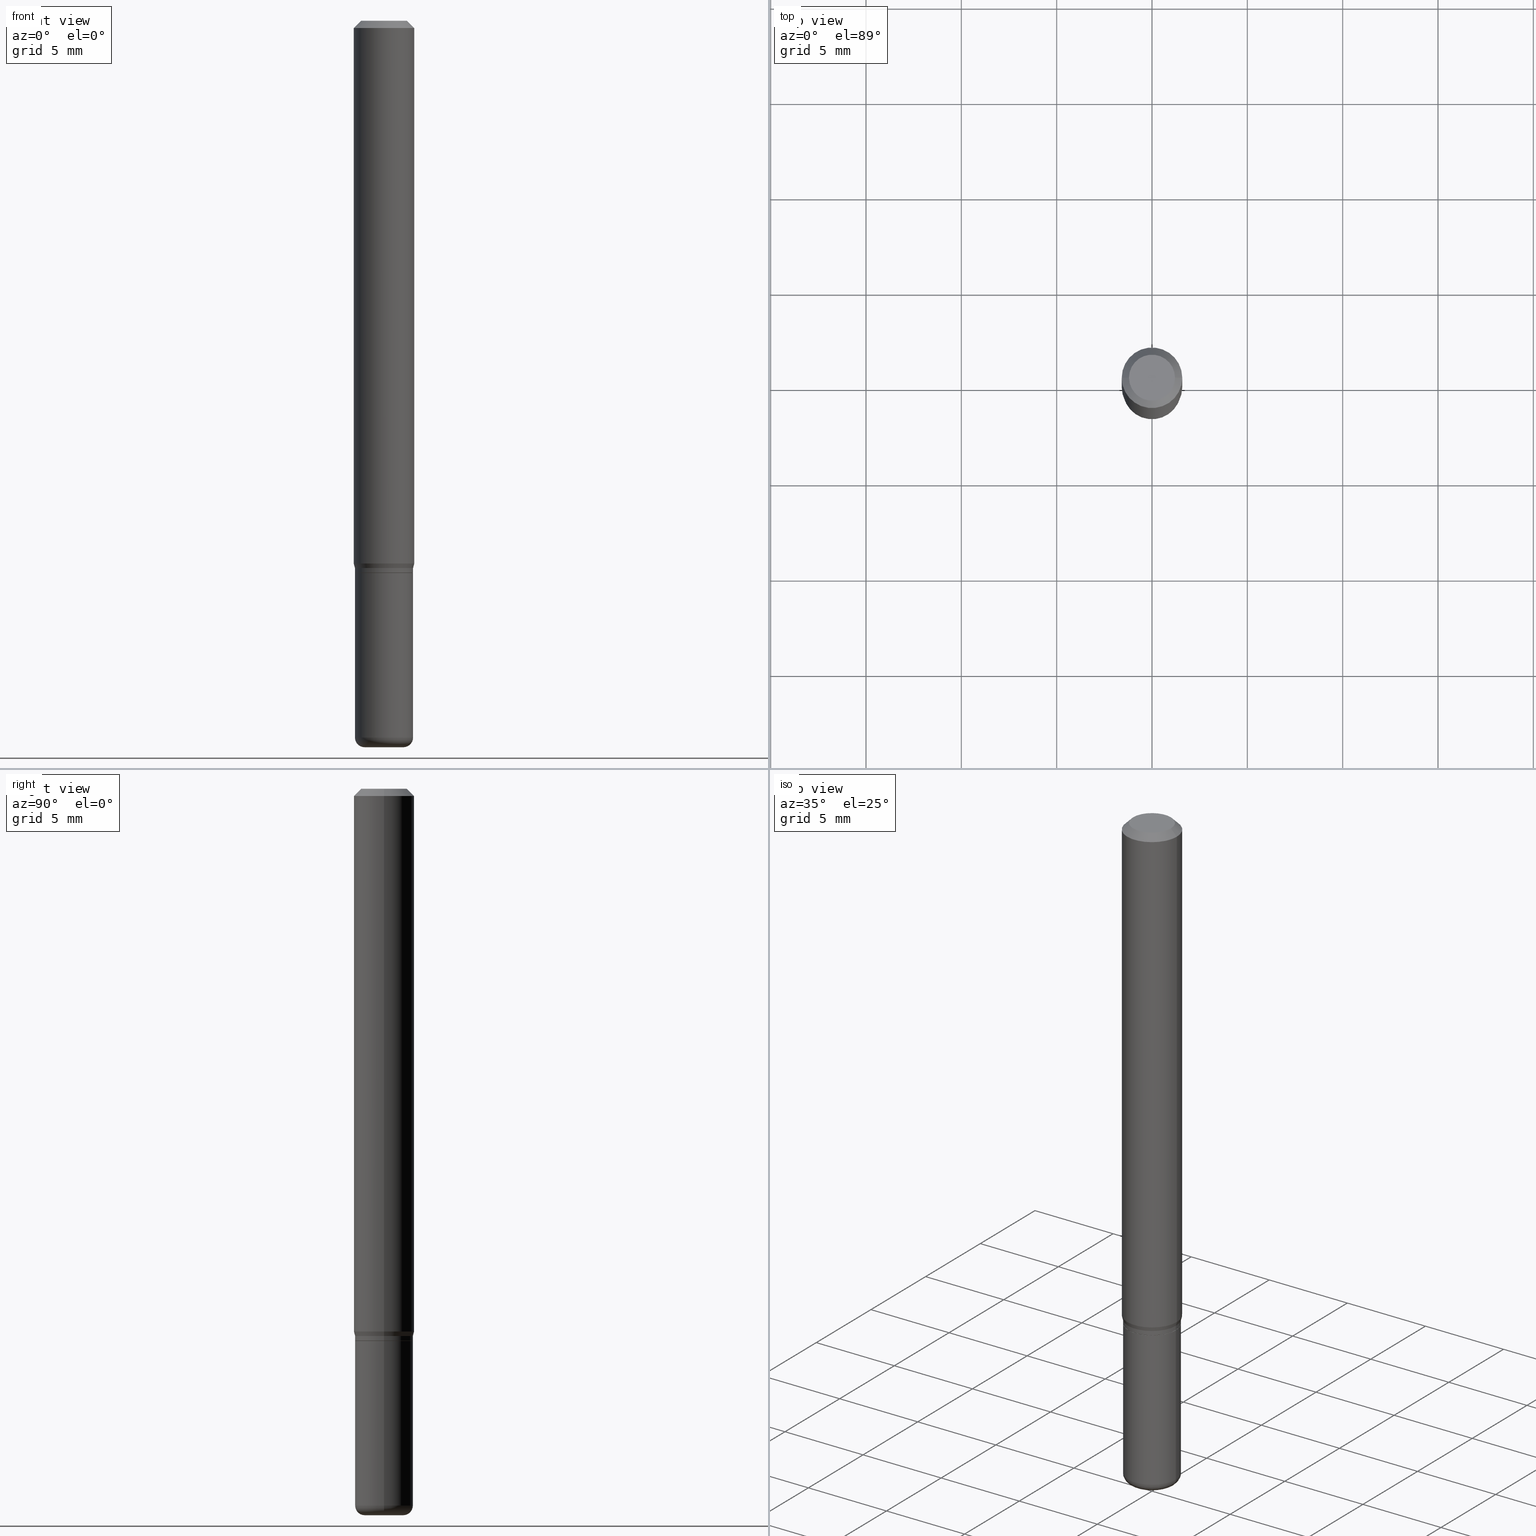
[diagram: canonical four-view strip — front | top / right | iso, engineering-drawing reading convention]
A machine part, canonical four-view strip (front | top / right | iso — engineering-drawing reading convention). The complete STEP part file that produces these views, byte-faithful:
ISO-10303-21;
HEADER;
FILE_DESCRIPTION (( 'STEP AP203' ),
    '1' );
FILE_NAME ('08638.STEP',
    '2024-02-29T20:06:43',
    ( '' ),
    ( '' ),
    'SwSTEP 2.0',
    'SolidWorks 2023',
    '' );
FILE_SCHEMA (( 'CONFIG_CONTROL_DESIGN' ));
ENDSEC;

DATA;
#1 = CARTESIAN_POINT ( 'NONE',  ( 0.05950000000000001815, -4.395775005603519536E-15, -1.140000000000000124 ) ) ;
#2 = EDGE_CURVE ( 'NONE', #74, #386, #167, .T. ) ;
#3 = ORIENTED_EDGE ( 'NONE', *, *, #316, .T. ) ;
#4 = CALENDAR_DATE ( 2024, 29, 2 ) ;
#5 = ORIENTED_EDGE ( 'NONE', *, *, #423, .F. ) ;
#6 = CIRCLE ( 'NONE', #293, 0.06250000000000000000 ) ;
#7 = AXIS2_PLACEMENT_3D ( 'NONE', #515, #438, #269 ) ;
#8 = APPLICATION_PROTOCOL_DEFINITION ( 'international standard', 'config_control_design', 1994, #135 ) ;
#9 = ORIENTED_EDGE ( 'NONE', *, *, #482, .T. ) ;
#10 = MECHANICAL_CONTEXT ( 'NONE', #135, 'mechanical' ) ;
#11 = DIRECTION ( 'NONE',  ( 1.000000000000000000, -6.982962677686266711E-15, 4.876176775795935793E-29 ) ) ;
#12 = ORIENTED_EDGE ( 'NONE', *, *, #29, .F. ) ;
#13 = AXIS2_PLACEMENT_3D ( 'NONE', #340, #292, #218 ) ;
#14 = AXIS2_PLACEMENT_3D ( 'NONE', #307, #200, #481 ) ;
#15 =( NAMED_UNIT ( * ) SI_UNIT ( $, .STERADIAN. ) SOLID_ANGLE_UNIT ( ) );
#16 = CARTESIAN_POINT ( 'NONE',  ( 0.06250000000000000000, -4.811533449433669144E-16, -0.01499999999999970281 ) ) ;
#17 = CARTESIAN_POINT ( 'NONE',  ( 0.04000000000000000083, -5.446710888595305705E-15, -1.479999999999999982 ) ) ;
#18 = EDGE_CURVE ( 'NONE', #112, #510, #447, .T. ) ;
#19 = CARTESIAN_POINT ( 'NONE',  ( -0.04000000000000000777, -4.847035826996236908E-15, -1.500000000000000222 ) ) ;
#20 = APPROVAL_DATE_TIME ( #342, #400 ) ;
#21 = LOCAL_TIME ( 15, 6, 43.00000000000000000, #339 ) ;
#22 = DIRECTION ( 'NONE',  ( -2.445468806185136597E-29, 3.491481338843145583E-15, 1.000000000000000000 ) ) ;
#23 = EDGE_CURVE ( 'NONE', #240, #75, #368, .T. ) ;
#24 = COORDINATED_UNIVERSAL_TIME_OFFSET ( 5, 0, .BEHIND. ) ;
#25 = DIRECTION ( 'NONE',  ( -2.445468806185136597E-29, 3.491481338843145583E-15, 1.000000000000000000 ) ) ;
#26 = DIRECTION ( 'NONE',  ( 1.000000000000000000, -6.982962677686268288E-15, 0.000000000000000000 ) ) ;
#27 = TOROIDAL_SURFACE ( 'NONE', #60, 0.04000000000000000083, 0.02000000000000003511 ) ;
#28 = CARTESIAN_POINT ( 'NONE',  ( 2.763379750989204444E-29, -3.945373912892755049E-15, -1.130000000000000115 ) ) ;
#29 = EDGE_CURVE ( 'NONE', #80, #112, #170, .T. ) ;
#30 = ORIENTED_EDGE ( 'NONE', *, *, #166, .F. ) ;
#31 = DIRECTION ( 'NONE',  ( 1.000000000000000000, -6.982962677686268288E-15, 0.000000000000000000 ) ) ;
#32 = CC_DESIGN_PERSON_AND_ORGANIZATION_ASSIGNMENT ( #101, #424, ( #441 ) ) ;
#33 = ORIENTED_EDGE ( 'NONE', *, *, #242, .F. ) ;
#34 = VERTEX_POINT ( 'NONE', #490 ) ;
#35 = PLANE ( 'NONE',  #257 ) ;
#36 = ORIENTED_EDGE ( 'NONE', *, *, #42, .F. ) ;
#37 = ORIENTED_EDGE ( 'NONE', *, *, #453, .F. ) ;
#38 = EDGE_CURVE ( 'NONE', #308, #510, #95, .T. ) ;
#39 = CARTESIAN_POINT ( 'NONE',  ( -0.06000000000000001860, 4.263256414560602437E-16, -2.951361054152944114E-30 ) ) ;
#40 = AXIS2_PLACEMENT_3D ( 'NONE', #128, #248, #11 ) ;
#41 = AXIS2_PLACEMENT_3D ( 'NONE', #407, #252, #127 ) ;
#42 = EDGE_CURVE ( 'NONE', #54, #74, #197, .T. ) ;
#43 = DIRECTION ( 'NONE',  ( 2.445468806185136597E-29, -3.491481338843145583E-15, -1.000000000000000000 ) ) ;
#44 = EDGE_LOOP ( 'NONE', ( #427, #493, #348, #321 ) ) ;
#45 = DIRECTION ( 'NONE',  ( 1.000000000000000000, -6.982962677686264344E-15, 0.000000000000000000 ) ) ;
#46 = EDGE_CURVE ( 'NONE', #187, #190, #301, .T. ) ;
#47 = EDGE_LOOP ( 'NONE', ( #371, #66, #118, #313 ) ) ;
#48 = CARTESIAN_POINT ( 'NONE',  ( -0.05999999999999999084, -3.493878505051891822E-15, -1.130000000000000115 ) ) ;
#49 = ADVANCED_FACE ( 'NONE', ( #173 ), #495, .T. ) ;
#50 = AXIS2_PLACEMENT_3D ( 'NONE', #193, #474, #434 ) ;
#51 = AXIS2_PLACEMENT_3D ( 'NONE', #123, #86, #246 ) ;
#52 = CARTESIAN_POINT ( 'NONE',  ( -6.680649051745406845E-45, 9.538196290434862081E-31, 2.731847993664263218E-16 ) ) ;
#53 = CARTESIAN_POINT ( 'NONE',  ( -0.06250000000000000000, 3.840629472727455270E-16, -0.01499999999999970281 ) ) ;
#54 = VERTEX_POINT ( 'NONE', #131 ) ;
#55 = DIRECTION ( 'NONE',  ( -6.982962677686266711E-15, -1.000000000000000000, 3.491481338843145583E-15 ) ) ;
#56 = PERSON_AND_ORGANIZATION ( #175, #179 ) ;
#57 = CARTESIAN_POINT ( 'NONE',  ( 3.668203209277704895E-29, -5.237222008264718177E-15, -1.500000000000000222 ) ) ;
#58 = CYLINDRICAL_SURFACE ( 'NONE', #13, 0.06000000000000001166 ) ;
#59 = DIRECTION ( 'NONE',  ( -2.445468806185136597E-29, 3.491481338843145583E-15, 1.000000000000000000 ) ) ;
#60 = AXIS2_PLACEMENT_3D ( 'NONE', #416, #25, #148 ) ;
#61 = DIRECTION ( 'NONE',  ( -1.000000000000000000, 6.982962677686266711E-15, 0.000000000000000000 ) ) ;
#62 = CC_DESIGN_PERSON_AND_ORGANIZATION_ASSIGNMENT ( #320, #485, ( #498 ) ) ;
#63 = CARTESIAN_POINT ( 'NONE',  ( -0.06000000000000001860, -3.552217344155705099E-15, -1.139500000000000179 ) ) ;
#64 = ORIENTED_EDGE ( 'NONE', *, *, #338, .F. ) ;
#65 = DIRECTION ( 'NONE',  ( 1.000000000000000000, -6.982962677686262766E-15, 0.000000000000000000 ) ) ;
#66 = ORIENTED_EDGE ( 'NONE', *, *, #488, .T. ) ;
#67 = EDGE_CURVE ( 'NONE', #54, #187, #491, .T. ) ;
#68 = CIRCLE ( 'NONE', #238, 0.04000000000000000777 ) ;
#69 = CARTESIAN_POINT ( 'NONE',  ( 3.316907271900976589E-16, 0.04750000000000000749, -2.925296391183627249E-17 ) ) ;
#70 = VECTOR ( 'NONE', #444, 39.37007874015748143 ) ;
#71 = ORIENTED_EDGE ( 'NONE', *, *, #126, .F. ) ;
#72 = PRODUCT_DEFINITION_SHAPE ( 'NONE', 'NONE',  #498 ) ;
#73 = DIRECTION ( 'NONE',  ( 1.000000000000000000, -6.982962677686269077E-15, 0.000000000000000000 ) ) ;
#74 = VERTEX_POINT ( 'NONE', #487 ) ;
#75 = VERTEX_POINT ( 'NONE', #93 ) ;
#76 = CARTESIAN_POINT ( 'NONE',  ( 0.04750000000000000749, -4.035134999187568762E-16, 2.731847993664288856E-16 ) ) ;
#77 = EDGE_CURVE ( 'NONE', #201, #381, #263, .T. ) ;
#78 = CARTESIAN_POINT ( 'NONE',  ( 4.189777606612038494E-16, 0.05999999999999602179, -1.140000000000000346 ) ) ;
#79 = CONICAL_SURFACE ( 'NONE', #362, 0.05950000000000001815, 0.7853981633975507526 ) ;
#80 = VERTEX_POINT ( 'NONE', #366 ) ;
#81 = AXIS2_PLACEMENT_3D ( 'NONE', #244, #456, #133 ) ;
#82 = CC_DESIGN_PERSON_AND_ORGANIZATION_ASSIGNMENT ( #260, #103, ( #247 ) ) ;
#83 = VERTEX_POINT ( 'NONE', #48 ) ;
#84 = DIRECTION ( 'NONE',  ( 2.438088387897960049E-29, -3.491481338843145188E-15, -1.000000000000000000 ) ) ;
#85 = EDGE_LOOP ( 'NONE', ( #457, #435, #518, #478 ) ) ;
#86 = DIRECTION ( 'NONE',  ( -2.445468806185136597E-29, 3.491481338843145583E-15, 1.000000000000000000 ) ) ;
#87 = EDGE_LOOP ( 'NONE', ( #283, #330 ) ) ;
#88 = ADVANCED_FACE ( 'NONE', ( #206 ), #245, .T. ) ;
#89 = DIRECTION ( 'NONE',  ( -2.445468806185136597E-29, 3.491481338843145583E-15, 1.000000000000000000 ) ) ;
#90 = VECTOR ( 'NONE', #297, 39.37007874015748143 ) ;
#91 = CC_DESIGN_APPROVAL ( #400, ( #247 ) ) ;
#92 = PLANE ( 'NONE',  #41 ) ;
#93 = CARTESIAN_POINT ( 'NONE',  ( -0.06250000000000000000, -1.538495874449836183E-15, -0.01499999999999970281 ) ) ;
#94 = DIRECTION ( 'NONE',  ( -2.445468806185136597E-29, 3.491481338843145583E-15, 1.000000000000000000 ) ) ;
#95 = LINE ( 'NONE', #16, #334 ) ;
#96 = CC_DESIGN_PERSON_AND_ORGANIZATION_ASSIGNMENT ( #299, #296, ( #247 ) ) ;
#97 =( CONVERSION_BASED_UNIT ( 'INCH', #213 ) LENGTH_UNIT ( ) NAMED_UNIT ( #332 ) );
#98 = CARTESIAN_POINT ( 'NONE',  ( 0.000000000000000000, 0.000000000000000000, 0.000000000000000000 ) ) ;
#99 = CIRCLE ( 'NONE', #116, 0.05950000000000001815 ) ;
#100 = CIRCLE ( 'NONE', #172, 0.05999999999999999778 ) ;
#101 = PERSON_AND_ORGANIZATION ( #175, #179 ) ;
#102 = DIRECTION ( 'NONE',  ( -2.445468806185136597E-29, 3.491481338843145583E-15, 1.000000000000000000 ) ) ;
#103 = PERSON_AND_ORGANIZATION_ROLE ( 'creator' ) ;
#104 = CARTESIAN_POINT ( 'NONE',  ( 2.787834439051055989E-29, -3.980288726281186698E-15, -1.140000000000000124 ) ) ;
#105 = CALENDAR_DATE ( 2024, 29, 2 ) ;
#106 = FACE_OUTER_BOUND ( 'NONE', #47, .T. ) ;
#107 = CLOSED_SHELL ( 'NONE', ( #412, #149, #276, #49, #443, #266, #88, #163, #322, #222, #365, #185 ) ) ;
#108 = DIRECTION ( 'NONE',  ( 1.000000000000000000, -6.982962677686265922E-15, 4.876176775795935793E-29 ) ) ;
#109 = DATE_TIME_ROLE ( 'creation_date' ) ;
#110 = DIRECTION ( 'NONE',  ( -2.445468806185136877E-29, 3.491481338843145188E-15, 1.000000000000000000 ) ) ;
#111 = EDGE_CURVE ( 'NONE', #112, #34, #328, .T. ) ;
#112 = VERTEX_POINT ( 'NONE', #226 ) ;
#113 = EDGE_CURVE ( 'NONE', #187, #54, #68, .T. ) ;
#114 = DIRECTION ( 'NONE',  ( 1.000000000000000000, -6.982962677686273810E-15, 0.000000000000000000 ) ) ;
#115 = ORIENTED_EDGE ( 'NONE', *, *, #126, .T. ) ;
#116 = AXIS2_PLACEMENT_3D ( 'NONE', #220, #505, #143 ) ;
#117 = DIRECTION ( 'NONE',  ( -2.445468806185136597E-29, 3.491481338843145583E-15, 1.000000000000000000 ) ) ;
#118 = ORIENTED_EDGE ( 'NONE', *, *, #509, .T. ) ;
#119 = DIRECTION ( 'NONE',  ( -2.445468806185136877E-29, 3.491481338843145188E-15, 1.000000000000000000 ) ) ;
#120 = ORIENTED_EDGE ( 'NONE', *, *, #111, .F. ) ;
#121 = DIRECTION ( 'NONE',  ( -2.445468806185136597E-29, 3.491481338843145583E-15, 1.000000000000000000 ) ) ;
#122 = ORIENTED_EDGE ( 'NONE', *, *, #233, .T. ) ;
#123 = CARTESIAN_POINT ( 'NONE',  ( 3.668203209277632395E-31, -5.237222008264614861E-17, -0.01499999999999970281 ) ) ;
#124 = CIRCLE ( 'NONE', #413, 0.06000000000000003247 ) ;
#125 = FACE_OUTER_BOUND ( 'NONE', #87, .T. ) ;
#126 = EDGE_CURVE ( 'NONE', #381, #201, #99, .T. ) ;
#127 = DIRECTION ( 'NONE',  ( 1.000000000000000000, -6.982962677686265922E-15, 4.876176775795935793E-29 ) ) ;
#128 = CARTESIAN_POINT ( 'NONE',  ( 0.000000000000000000, 0.000000000000000000, 0.000000000000000000 ) ) ;
#129 = CARTESIAN_POINT ( 'NONE',  ( 0.06250000000000000000, -4.888073874380378612E-16, -0.01499999999999970281 ) ) ;
#130 = EDGE_CURVE ( 'NONE', #83, #80, #392, .T. ) ;
#131 = CARTESIAN_POINT ( 'NONE',  ( 0.04000000000000000777, -5.516540515372169003E-15, -1.500000000000000222 ) ) ;
#132 = AXIS2_PLACEMENT_3D ( 'NONE', #281, #136, #454 ) ;
#133 = DIRECTION ( 'NONE',  ( 1.000000000000000000, -6.982962677686265922E-15, 0.000000000000000000 ) ) ;
#134 = DIRECTION ( 'NONE',  ( 1.000000000000000000, -6.982962677686272233E-15, 0.000000000000000000 ) ) ;
#135 = APPLICATION_CONTEXT ( 'configuration controlled 3d designs of mechanical parts and assemblies' ) ;
#136 = DIRECTION ( 'NONE',  ( -2.445468806185136597E-29, 3.491481338843145583E-15, 1.000000000000000000 ) ) ;
#137 = ORIENTED_EDGE ( 'NONE', *, *, #473, .T. ) ;
#138 = FACE_OUTER_BOUND ( 'NONE', #379, .T. ) ;
#139 = EDGE_CURVE ( 'NONE', #196, #83, #507, .T. ) ;
#140 = CIRCLE ( 'NONE', #155, 0.06250000000000000000 ) ;
#141 = CARTESIAN_POINT ( 'NONE',  ( 2.787834439051055989E-29, -3.980288726281186698E-15, -1.140000000000000124 ) ) ;
#142 = DATE_AND_TIME ( #373, #484 ) ;
#143 = DIRECTION ( 'NONE',  ( 1.000000000000000000, -6.982962677686273810E-15, 0.000000000000000000 ) ) ;
#144 = ORIENTED_EDGE ( 'NONE', *, *, #242, .T. ) ;
#145 = FACE_OUTER_BOUND ( 'NONE', #229, .T. ) ;
#146 = AXIS2_PLACEMENT_3D ( 'NONE', #17, #55, #134 ) ;
#147 = AXIS2_PLACEMENT_3D ( 'NONE', #486, #451, #255 ) ;
#148 = DIRECTION ( 'NONE',  ( 1.000000000000000000, -6.982962677686264344E-15, 4.883557194083111780E-29 ) ) ;
#149 = ADVANCED_FACE ( 'NONE', ( #145 ), #79, .T. ) ;
#150 = FACE_OUTER_BOUND ( 'NONE', #503, .T. ) ;
#151 = DIRECTION ( 'NONE',  ( -1.000000000000000000, 6.982962677686265922E-15, -4.876176775795935793E-29 ) ) ;
#152 = VERTEX_POINT ( 'NONE', #376 ) ;
#153 = ORIENTED_EDGE ( 'NONE', *, *, #2, .T. ) ;
#154 = VECTOR ( 'NONE', #110, 39.37007874015748143 ) ;
#155 = AXIS2_PLACEMENT_3D ( 'NONE', #390, #517, #158 ) ;
#156 = DIRECTION ( 'NONE',  ( -2.445468806185136597E-29, 3.491481338843145583E-15, 1.000000000000000000 ) ) ;
#157 = ORIENTED_EDGE ( 'NONE', *, *, #77, .T. ) ;
#158 = DIRECTION ( 'NONE',  ( 1.000000000000000000, -6.982962677686266711E-15, 0.000000000000000000 ) ) ;
#159 = DIRECTION ( 'NONE',  ( -1.000000000000000000, 6.982962677686265922E-15, -4.876176775795935793E-29 ) ) ;
#160 = APPROVAL_DATE_TIME ( #285, #195 ) ;
#161 = AXIS2_PLACEMENT_3D ( 'NONE', #57, #210, #372 ) ;
#162 = CIRCLE ( 'NONE', #7, 0.04750000000000000749 ) ;
#163 = ADVANCED_FACE ( 'NONE', ( #189 ), #461, .T. ) ;
#164 = ORIENTED_EDGE ( 'NONE', *, *, #211, .T. ) ;
#165 = DIRECTION ( 'NONE',  ( -2.445468806185136597E-29, 3.491481338843145583E-15, 1.000000000000000000 ) ) ;
#166 = EDGE_CURVE ( 'NONE', #34, #75, #176, .T. ) ;
#167 = LINE ( 'NONE', #256, #309 ) ;
#168 = ADVANCED_FACE ( 'NONE', ( #345 ), #27, .T. ) ;
#169 = PERSON_AND_ORGANIZATION ( #175, #179 ) ;
#170 = LINE ( 'NONE', #331, #402 ) ;
#171 = VECTOR ( 'NONE', #217, 39.37007874015748143 ) ;
#172 = AXIS2_PLACEMENT_3D ( 'NONE', #385, #388, #31 ) ;
#173 = FACE_OUTER_BOUND ( 'NONE', #512, .T. ) ;
#174 = CARTESIAN_POINT ( 'NONE',  ( 2.787834439051055989E-29, -3.980288726281186698E-15, -1.140000000000000124 ) ) ;
#175 = PERSON ( 'UNSPECIFIED', 'UNSPECIFIED', 'UNSPECIFIED', ('UNSPECIFIED'), ('UNSPECIFIED'), ('UNSPECIFIED') ) ;
#176 = LINE ( 'NONE', #378, #154 ) ;
#177 = VECTOR ( 'NONE', #119, 39.37007874015748143 ) ;
#178 = ORIENTED_EDGE ( 'NONE', *, *, #208, .F. ) ;
#179 = ORGANIZATION ( 'UNSPECIFIED', 'UNSPECIFIED', '' ) ;
#180 = MANIFOLD_SOLID_BREP ( 'Body-Move/Copy2[2]', #107 ) ;
#181 = APPROVAL_STATUS ( 'not_yet_approved' ) ;
#182 = FACE_OUTER_BOUND ( 'NONE', #44, .T. ) ;
#183 = DIRECTION ( 'NONE',  ( -2.445468806185136597E-29, 3.491481338843145583E-15, 1.000000000000000000 ) ) ;
#184 = CALENDAR_DATE ( 2024, 29, 2 ) ;
#185 = ADVANCED_FACE ( 'NONE', ( #106 ), #58, .T. ) ;
#186 = DIRECTION ( 'NONE',  ( -2.445468806185136597E-29, 3.491481338843145583E-15, 1.000000000000000000 ) ) ;
#187 = VERTEX_POINT ( 'NONE', #19 ) ;
#188 = VECTOR ( 'NONE', #265, 39.37007874015748143 ) ;
#189 = FACE_OUTER_BOUND ( 'NONE', #401, .T. ) ;
#190 = VERTEX_POINT ( 'NONE', #380 ) ;
#191 = FACE_OUTER_BOUND ( 'NONE', #333, .T. ) ;
#192 = ORIENTED_EDGE ( 'NONE', *, *, #311, .F. ) ;
#193 = CARTESIAN_POINT ( 'NONE',  ( 2.763379750989204444E-29, -3.945373912892755049E-15, -1.130000000000000115 ) ) ;
#194 = ORIENTED_EDGE ( 'NONE', *, *, #77, .F. ) ;
#195 = APPROVAL ( #327, 'UNSPECIFIED' ) ;
#196 = VERTEX_POINT ( 'NONE', #63 ) ;
#197 = CIRCLE ( 'NONE', #146, 0.02000000000000003511 ) ;
#198 = LINE ( 'NONE', #1, #403 ) ;
#199 = ORIENTED_EDGE ( 'NONE', *, *, #208, .T. ) ;
#200 = DIRECTION ( 'NONE',  ( -2.445468806185136597E-29, 3.491481338843145583E-15, 1.000000000000000000 ) ) ;
#201 = VERTEX_POINT ( 'NONE', #304 ) ;
#202 = DIRECTION ( 'NONE',  ( 1.000000000000000000, -6.982962677686266711E-15, 4.876176775795935793E-29 ) ) ;
#203 = ORIENTED_EDGE ( 'NONE', *, *, #113, .T. ) ;
#204 = LINE ( 'NONE', #492, #329 ) ;
#205 = AXIS2_PLACEMENT_3D ( 'NONE', #464, #232, #73 ) ;
#206 = FACE_OUTER_BOUND ( 'NONE', #411, .T. ) ;
#207 = AXIS2_PLACEMENT_3D ( 'NONE', #78, #239, #151 ) ;
#208 = EDGE_CURVE ( 'NONE', #190, #74, #124, .T. ) ;
#209 = CARTESIAN_POINT ( 'NONE',  ( 0.06000000000000001166, -4.189777606611760914E-16, 2.925706065477562106E-30 ) ) ;
#210 = DIRECTION ( 'NONE',  ( -2.445468806185136597E-29, 3.491481338843145583E-15, 1.000000000000000000 ) ) ;
#211 = EDGE_CURVE ( 'NONE', #381, #196, #335, .T. ) ;
#212 = CARTESIAN_POINT ( 'NONE',  ( 0.06250000000000000000, -4.364351673553916694E-16, 3.047610484872459871E-30 ) ) ;
#213 = LENGTH_MEASURE_WITH_UNIT ( LENGTH_MEASURE( 0.02539999999999999897 ), #367 );
#214 = EDGE_LOOP ( 'NONE', ( #224, #137, #120, #12 ) ) ;
#215 = AXIS2_PLACEMENT_3D ( 'NONE', #174, #89, #445 ) ;
#216 = CC_DESIGN_APPROVAL ( #506, ( #441 ) ) ;
#217 = DIRECTION ( 'NONE',  ( -2.445468806185136877E-29, 3.491481338843145188E-15, 1.000000000000000000 ) ) ;
#218 = DIRECTION ( 'NONE',  ( 1.000000000000000000, -6.982962677686266711E-15, 4.876176775795935793E-29 ) ) ;
#219 = DATE_AND_TIME ( #258, #450 ) ;
#220 = CARTESIAN_POINT ( 'NONE',  ( 2.787834439051055989E-29, -3.980288726281186698E-15, -1.140000000000000124 ) ) ;
#221 = CIRCLE ( 'NONE', #353, 0.05999999999999999778 ) ;
#222 = ADVANCED_FACE ( 'NONE', ( #138 ), #429, .F. ) ;
#223 = CC_DESIGN_SECURITY_CLASSIFICATION ( #441, ( #247 ) ) ;
#224 = ORIENTED_EDGE ( 'NONE', *, *, #254, .T. ) ;
#225 = COORDINATED_UNIVERSAL_TIME_OFFSET ( 5, 0, .BEHIND. ) ;
#226 = CARTESIAN_POINT ( 'NONE',  ( 0.06250000000000000000, -4.349233115872544161E-15, -1.120669872981078008 ) ) ;
#227 = DATE_AND_TIME ( #184, #21 ) ;
#228 = DIRECTION ( 'NONE',  ( 1.000000000000000000, -6.982962677686264344E-15, 0.000000000000000000 ) ) ;
#229 = EDGE_LOOP ( 'NONE', ( #157, #164, #387, #192 ) ) ;
#230 = DIRECTION ( 'NONE',  ( -2.445468806185136597E-29, 3.491481338843145583E-15, 1.000000000000000000 ) ) ;
#231 = CIRCLE ( 'NONE', #294, 0.06000000000000003247 ) ;
#232 = DIRECTION ( 'NONE',  ( -2.445468806185136597E-29, 3.491481338843145583E-15, 1.000000000000000000 ) ) ;
#233 = EDGE_CURVE ( 'NONE', #426, #386, #221, .T. ) ;
#234 = LINE ( 'NONE', #39, #177 ) ;
#235 = PRODUCT_RELATED_PRODUCT_CATEGORY ( 'detail', '', ( #306 ) ) ;
#236 = ORIENTED_EDGE ( 'NONE', *, *, #393, .F. ) ;
#237 = CARTESIAN_POINT ( 'NONE',  ( -0.05950000000000001815, -3.554866571329815905E-15, -1.140000000000000124 ) ) ;
#238 = AXIS2_PLACEMENT_3D ( 'NONE', #374, #230, #425 ) ;
#239 = DIRECTION ( 'NONE',  ( 2.438088387897960049E-29, -3.491481338843145188E-15, -1.000000000000000000 ) ) ;
#240 = VERTEX_POINT ( 'NONE', #343 ) ;
#241 = ORIENTED_EDGE ( 'NONE', *, *, #46, .F. ) ;
#242 = EDGE_CURVE ( 'NONE', #34, #112, #6, .T. ) ;
#243 = DIRECTION ( 'NONE',  ( -1.000000000000000000, 6.982962677686266711E-15, 0.000000000000000000 ) ) ;
#244 = CARTESIAN_POINT ( 'NONE',  ( 2.786611704647963748E-29, -3.978542985611765194E-15, -1.139500000000000179 ) ) ;
#245 = CYLINDRICAL_SURFACE ( 'NONE', #40, 0.06250000000000000000 ) ;
#246 = DIRECTION ( 'NONE',  ( 1.000000000000000000, -6.982962677686266711E-15, 0.000000000000000000 ) ) ;
#247 = PRODUCT_DEFINITION_FORMATION_WITH_SPECIFIED_SOURCE ( 'ANY', '', #306, .NOT_KNOWN. ) ;
#248 = DIRECTION ( 'NONE',  ( -2.445468806185136597E-29, 3.491481338843145583E-15, 1.000000000000000000 ) ) ;
#249 = ADVANCED_FACE ( 'NONE', ( #182 ), #261, .T. ) ;
#250 = DIRECTION ( 'NONE',  ( -0.2588190451025239591, 5.211531920934566030E-15, 0.9659258262890674240 ) ) ;
#251 = DIRECTION ( 'NONE',  ( 7.105427357601001859E-15, 1.000000000000000000, -3.491481338843145583E-15 ) ) ;
#252 = DIRECTION ( 'NONE',  ( -2.438088387897960049E-29, 3.491481338843145188E-15, 1.000000000000000000 ) ) ;
#253 = ORIENTED_EDGE ( 'NONE', *, *, #211, .F. ) ;
#254 = EDGE_CURVE ( 'NONE', #80, #83, #516, .T. ) ;
#255 = DIRECTION ( 'NONE',  ( 1.000000000000000000, 0.000000000000000000, 0.000000000000000000 ) ) ;
#256 = CARTESIAN_POINT ( 'NONE',  ( 0.06000000000000001860, -4.189777606611761407E-16, 2.925706065477562457E-30 ) ) ;
#257 = AXIS2_PLACEMENT_3D ( 'NONE', #69, #84, #159 ) ;
#258 = CALENDAR_DATE ( 2024, 29, 2 ) ;
#259 = DIRECTION ( 'NONE',  ( 1.000000000000000000, -6.982962677686266711E-15, 4.876176775795935793E-29 ) ) ;
#260 = PERSON_AND_ORGANIZATION ( #175, #179 ) ;
#261 = CYLINDRICAL_SURFACE ( 'NONE', #431, 0.06000000000000001860 ) ;
#262 = ADVANCED_FACE ( 'NONE', ( #436 ), #305, .T. ) ;
#263 = CIRCLE ( 'NONE', #215, 0.05950000000000001815 ) ;
#264 = APPROVAL_DATE_TIME ( #219, #506 ) ;
#265 = DIRECTION ( 'NONE',  ( -0.7071067811866199593, 7.493145998870616062E-15, 0.7071067811864750752 ) ) ;
#266 = ADVANCED_FACE ( 'NONE', ( #508 ), #336, .T. ) ;
#267 = CARTESIAN_POINT ( 'NONE',  ( 3.619293833154002365E-29, -5.167392381487854879E-15, -1.479999999999999982 ) ) ;
#268 = ORIENTED_EDGE ( 'NONE', *, *, #29, .T. ) ;
#269 = DIRECTION ( 'NONE',  ( 1.000000000000000000, -6.982962677686266711E-15, 4.852736867747365086E-29 ) ) ;
#270 = ORIENTED_EDGE ( 'NONE', *, *, #23, .T. ) ;
#271 = CONICAL_SURFACE ( 'NONE', #14, 0.05999999999999999084, 0.2617993877991527385 ) ;
#272 = CARTESIAN_POINT ( 'NONE',  ( 2.786611704647963748E-29, -3.978542985611765194E-15, -1.139500000000000179 ) ) ;
#273 = DIRECTION ( 'NONE',  ( 1.000000000000000000, -6.982962677686265922E-15, 0.000000000000000000 ) ) ;
#274 = EDGE_LOOP ( 'NONE', ( #399, #344, #236, #36 ) ) ;
#275 = CARTESIAN_POINT ( 'NONE',  ( 0.000000000000000000, 0.000000000000000000, 0.000000000000000000 ) ) ;
#276 = ADVANCED_FACE ( 'NONE', ( #356 ), #475, .T. ) ;
#277 = ORIENTED_EDGE ( 'NONE', *, *, #423, .T. ) ;
#278 = AXIS2_PLACEMENT_3D ( 'NONE', #408, #251, #406 ) ;
#279 = CC_DESIGN_APPROVAL ( #195, ( #498 ) ) ;
#280 = DIRECTION ( 'NONE',  ( 0.7071067811866199593, -2.468850131083015945E-15, 0.7071067811864750752 ) ) ;
#281 = CARTESIAN_POINT ( 'NONE',  ( 3.619293833154002365E-29, -5.167392381487854879E-15, -1.479999999999999982 ) ) ;
#282 = DIRECTION ( 'NONE',  ( 1.000000000000000000, -6.982962677686266711E-15, 4.876176775795935793E-29 ) ) ;
#283 = ORIENTED_EDGE ( 'NONE', *, *, #67, .F. ) ;
#284 = EDGE_CURVE ( 'NONE', #190, #426, #234, .T. ) ;
#285 = DATE_AND_TIME ( #4, #319 ) ;
#286 = AXIS2_PLACEMENT_3D ( 'NONE', #471, #117, #114 ) ;
#287 = CARTESIAN_POINT ( 'NONE',  ( 2.740563216406685153E-29, -3.912797948517151703E-15, -1.120669872981078008 ) ) ;
#288 = LINE ( 'NONE', #209, #70 ) ;
#289 = ORIENTED_EDGE ( 'NONE', *, *, #389, .T. ) ;
#290 = DIRECTION ( 'NONE',  ( -0.7071067811865479058, 2.468850131082261005E-15, -0.7071067811865471286 ) ) ;
#291 = COORDINATED_UNIVERSAL_TIME_OFFSET ( 5, 0, .BEHIND. ) ;
#292 = DIRECTION ( 'NONE',  ( -2.445468806185136597E-29, 3.491481338843145583E-15, 1.000000000000000000 ) ) ;
#293 = AXIS2_PLACEMENT_3D ( 'NONE', #418, #22, #65 ) ;
#294 = AXIS2_PLACEMENT_3D ( 'NONE', #430, #442, #45 ) ;
#295 = DIRECTION ( 'NONE',  ( -2.445468806185136597E-29, 3.491481338843145583E-15, 1.000000000000000000 ) ) ;
#296 = PERSON_AND_ORGANIZATION_ROLE ( 'design_supplier' ) ;
#297 = DIRECTION ( 'NONE',  ( -2.445468806185136877E-29, 3.491481338843145188E-15, 1.000000000000000000 ) ) ;
#298 = ORIENTED_EDGE ( 'NONE', *, *, #18, .T. ) ;
#299 = PERSON_AND_ORGANIZATION ( #175, #179 ) ;
#300 = DIRECTION ( 'NONE',  ( -2.438088387897960049E-29, 3.491481338843145188E-15, 1.000000000000000000 ) ) ;
#301 = CIRCLE ( 'NONE', #278, 0.02000000000000003511 ) ;
#302 = AXIS2_PLACEMENT_3D ( 'NONE', #52, #94, #446 ) ;
#303 = APPROVAL_ROLE ( '' ) ;
#304 = CARTESIAN_POINT ( 'NONE',  ( 0.05950000000000001815, -4.395775005603519536E-15, -1.140000000000000124 ) ) ;
#305 = CYLINDRICAL_SURFACE ( 'NONE', #420, 0.06000000000000001860 ) ;
#306 = PRODUCT ( '08638', '08638', '', ( #10 ) ) ;
#307 = CARTESIAN_POINT ( 'NONE',  ( 2.763379750989204444E-29, -3.945373912892755049E-15, -1.130000000000000115 ) ) ;
#308 = VERTEX_POINT ( 'NONE', #76 ) ;
#309 = VECTOR ( 'NONE', #455, 39.37007874015748143 ) ;
#310 = CIRCLE ( 'NONE', #51, 0.06250000000000000000 ) ;
#311 = EDGE_CURVE ( 'NONE', #201, #152, #198, .T. ) ;
#312 = CARTESIAN_POINT ( 'NONE',  ( 0.000000000000000000, 0.000000000000000000, 0.000000000000000000 ) ) ;
#313 = ORIENTED_EDGE ( 'NONE', *, *, #130, .F. ) ;
#314 = ORIENTED_EDGE ( 'NONE', *, *, #111, .T. ) ;
#315 = CARTESIAN_POINT ( 'NONE',  ( -0.05999999999999999778, -4.147514912428460298E-15, -1.140000000000000124 ) ) ;
#316 = EDGE_CURVE ( 'NONE', #386, #426, #100, .T. ) ;
#317 = FACE_OUTER_BOUND ( 'NONE', #476, .T. ) ;
#318 = AXIS2_PLACEMENT_3D ( 'NONE', #287, #452, #502 ) ;
#319 = LOCAL_TIME ( 15, 6, 43.00000000000000000, #325 ) ;
#320 = PERSON_AND_ORGANIZATION ( #175, #179 ) ;
#321 = ORIENTED_EDGE ( 'NONE', *, *, #2, .F. ) ;
#322 = ADVANCED_FACE ( 'NONE', ( #191 ), #35, .F. ) ;
#323 = DIRECTION ( 'NONE',  ( 0.2588190451025239591, 1.565188264969601063E-15, 0.9659258262890674240 ) ) ;
#324 = CC_DESIGN_DATE_AND_TIME_ASSIGNMENT ( #227, #465, ( #441 ) ) ;
#325 = COORDINATED_UNIVERSAL_TIME_OFFSET ( 5, 0, .BEHIND. ) ;
#326 = ORIENTED_EDGE ( 'NONE', *, *, #488, .F. ) ;
#327 = APPROVAL_STATUS ( 'not_yet_approved' ) ;
#328 = CIRCLE ( 'NONE', #318, 0.06250000000000000000 ) ;
#329 = VECTOR ( 'NONE', #250, 39.37007874015748143 ) ;
#330 = ORIENTED_EDGE ( 'NONE', *, *, #113, .F. ) ;
#331 = CARTESIAN_POINT ( 'NONE',  ( 0.05999999999999999084, -4.364351673553930894E-15, -1.130000000000000115 ) ) ;
#332 = DIMENSIONAL_EXPONENTS ( 1.000000000000000000, 0.000000000000000000, 0.000000000000000000, 0.000000000000000000, 0.000000000000000000, 0.000000000000000000, 0.000000000000000000 ) ;
#333 = EDGE_LOOP ( 'NONE', ( #360, #9 ) ) ;
#334 = VECTOR ( 'NONE', #497, 39.37007874015748143 ) ;
#335 = LINE ( 'NONE', #500, #188 ) ;
#336 = CONICAL_SURFACE ( 'NONE', #50, 0.05999999999999999084, 0.2617993877991527385 ) ;
#337 = CIRCLE ( 'NONE', #81, 0.06000000000000001860 ) ;
#338 = EDGE_CURVE ( 'NONE', #240, #308, #162, .T. ) ;
#339 = COORDINATED_UNIVERSAL_TIME_OFFSET ( 5, 0, .BEHIND. ) ;
#340 = CARTESIAN_POINT ( 'NONE',  ( 0.000000000000000000, 0.000000000000000000, 0.000000000000000000 ) ) ;
#341 = CARTESIAN_POINT ( 'NONE',  ( 2.787834439051055989E-29, -3.980288726281186698E-15, -1.140000000000000124 ) ) ;
#342 = DATE_AND_TIME ( #105, #422 ) ;
#343 = CARTESIAN_POINT ( 'NONE',  ( -0.04750000000000000749, 3.578768372314221353E-16, 2.731847993664239060E-16 ) ) ;
#344 = ORIENTED_EDGE ( 'NONE', *, *, #46, .T. ) ;
#345 = FACE_OUTER_BOUND ( 'NONE', #274, .T. ) ;
#346 = CYLINDRICAL_SURFACE ( 'NONE', #354, 0.06000000000000001166 ) ;
#347 = ORIENTED_EDGE ( 'NONE', *, *, #42, .T. ) ;
#348 = ORIENTED_EDGE ( 'NONE', *, *, #316, .F. ) ;
#349 = MANIFOLD_SOLID_BREP ( 'Body-Move/Copy2[1]', #448 ) ;
#350 = DIRECTION ( 'NONE',  ( 1.000000000000000000, -6.982962677686266711E-15, 4.876176775795935793E-29 ) ) ;
#351 = UNCERTAINTY_MEASURE_WITH_UNIT (LENGTH_MEASURE( 1.000000000000000082E-05 ), #97, 'distance_accuracy_value', 'NONE');
#352 = EDGE_LOOP ( 'NONE', ( #289, #396, #410, #358 ) ) ;
#353 = AXIS2_PLACEMENT_3D ( 'NONE', #141, #295, #26 ) ;
#354 = AXIS2_PLACEMENT_3D ( 'NONE', #312, #121, #202 ) ;
#355 = DIRECTION ( 'NONE',  ( -2.445468806185136597E-29, 3.491481338843145583E-15, 1.000000000000000000 ) ) ;
#356 = FACE_OUTER_BOUND ( 'NONE', #85, .T. ) ;
#357 = ORIENTED_EDGE ( 'NONE', *, *, #473, .F. ) ;
#358 = ORIENTED_EDGE ( 'NONE', *, *, #509, .F. ) ;
#359 = APPROVAL_ROLE ( '' ) ;
#360 = ORIENTED_EDGE ( 'NONE', *, *, #338, .T. ) ;
#361 = EDGE_LOOP ( 'NONE', ( #439, #199, #153, #432 ) ) ;
#362 = AXIS2_PLACEMENT_3D ( 'NONE', #104, #59, #421 ) ;
#363 = CIRCLE ( 'NONE', #302, 0.04750000000000000749 ) ;
#364 = EDGE_LOOP ( 'NONE', ( #241, #203, #347, #178 ) ) ;
#365 = ADVANCED_FACE ( 'NONE', ( #317 ), #462, .T. ) ;
#366 = CARTESIAN_POINT ( 'NONE',  ( 0.05999999999999999084, -4.364351673553930894E-15, -1.130000000000000115 ) ) ;
#367 =( LENGTH_UNIT ( ) NAMED_UNIT ( * ) SI_UNIT ( $, .METRE. ) );
#368 = LINE ( 'NONE', #53, #449 ) ;
#369 = AXIS2_PLACEMENT_3D ( 'NONE', #466, #470, #61 ) ;
#370 = APPROVAL_PERSON_ORGANIZATION ( #460, #400, #419 ) ;
#371 = ORIENTED_EDGE ( 'NONE', *, *, #139, .F. ) ;
#372 = DIRECTION ( 'NONE',  ( 1.000000000000000000, -6.982962677686258033E-15, 0.000000000000000000 ) ) ;
#373 = CALENDAR_DATE ( 2024, 29, 2 ) ;
#374 = CARTESIAN_POINT ( 'NONE',  ( 3.668203209277704895E-29, -5.237222008264718177E-15, -1.500000000000000222 ) ) ;
#375 = AXIS2_PLACEMENT_3D ( 'NONE', #98, #165, #282 ) ;
#376 = CARTESIAN_POINT ( 'NONE',  ( 0.06000000000000001860, -4.397520746272941828E-15, -1.139500000000000179 ) ) ;
#377 = APPROVAL_PERSON_ORGANIZATION ( #501, #506, #303 ) ;
#378 = CARTESIAN_POINT ( 'NONE',  ( -0.06250000000000000000, 4.440892098500626162E-16, -3.074334431409316114E-30 ) ) ;
#379 = EDGE_LOOP ( 'NONE', ( #194, #71 ) ) ;
#380 = CARTESIAN_POINT ( 'NONE',  ( -0.06000000000000003247, -4.147514912428460298E-15, -1.479999999999999982 ) ) ;
#381 = VERTEX_POINT ( 'NONE', #237 ) ;
#382 = DIRECTION ( 'NONE',  ( 1.000000000000000000, -6.982962677686269077E-15, 0.000000000000000000 ) ) ;
#383 = AXIS2_PLACEMENT_3D ( 'NONE', #28, #186, #382 ) ;
#384 = AXIS2_PLACEMENT_3D ( 'NONE', #398, #43, #243 ) ;
#385 = CARTESIAN_POINT ( 'NONE',  ( 2.787834439051055989E-29, -3.980288726281186698E-15, -1.140000000000000124 ) ) ;
#386 = VERTEX_POINT ( 'NONE', #479 ) ;
#387 = ORIENTED_EDGE ( 'NONE', *, *, #389, .F. ) ;
#388 = DIRECTION ( 'NONE',  ( -2.445468806185136597E-29, 3.491481338843145583E-15, 1.000000000000000000 ) ) ;
#389 = EDGE_CURVE ( 'NONE', #152, #196, #394, .T. ) ;
#390 = CARTESIAN_POINT ( 'NONE',  ( 3.668203209277632395E-31, -5.237222008264614861E-17, -0.01499999999999970281 ) ) ;
#391 = DESIGN_CONTEXT ( 'detailed design', #458, 'design' ) ;
#392 = CIRCLE ( 'NONE', #383, 0.05999999999999999084 ) ;
#393 = EDGE_CURVE ( 'NONE', #74, #190, #231, .T. ) ;
#394 = CIRCLE ( 'NONE', #433, 0.06000000000000001860 ) ;
#395 = FACE_OUTER_BOUND ( 'NONE', #214, .T. ) ;
#396 = ORIENTED_EDGE ( 'NONE', *, *, #139, .T. ) ;
#397 = ORIENTED_EDGE ( 'NONE', *, *, #38, .F. ) ;
#398 = CARTESIAN_POINT ( 'NONE',  ( 3.668203209277632395E-31, -5.237222008264614861E-17, -0.01499999999999970281 ) ) ;
#399 = ORIENTED_EDGE ( 'NONE', *, *, #67, .T. ) ;
#400 = APPROVAL ( #181, 'UNSPECIFIED' ) ;
#401 = EDGE_LOOP ( 'NONE', ( #397, #64, #270, #277 ) ) ;
#402 = VECTOR ( 'NONE', #323, 39.37007874015748143 ) ;
#403 = VECTOR ( 'NONE', #280, 39.37007874015748143 ) ;
#404 =( GEOMETRIC_REPRESENTATION_CONTEXT ( 3 ) GLOBAL_UNCERTAINTY_ASSIGNED_CONTEXT ( ( #351 ) ) GLOBAL_UNIT_ASSIGNED_CONTEXT ( ( #97, #405, #15 ) ) REPRESENTATION_CONTEXT ( 'NONE', 'WORKASPACE' ) );
#405 =( NAMED_UNIT ( * ) PLANE_ANGLE_UNIT ( ) SI_UNIT ( $, .RADIAN. ) );
#406 = DIRECTION ( 'NONE',  ( -1.000000000000000000, 7.105427357601009747E-15, 0.000000000000000000 ) ) ;
#407 = CARTESIAN_POINT ( 'NONE',  ( 3.582686580359766038E-29, -5.359686688179453325E-15, -1.500000000000000222 ) ) ;
#408 = CARTESIAN_POINT ( 'NONE',  ( -0.04000000000000000083, -4.883175287183815341E-15, -1.479999999999999982 ) ) ;
#409 = FACE_OUTER_BOUND ( 'NONE', #364, .T. ) ;
#410 = ORIENTED_EDGE ( 'NONE', *, *, #254, .F. ) ;
#411 = EDGE_LOOP ( 'NONE', ( #30, #144, #298, #5 ) ) ;
#412 = ADVANCED_FACE ( 'NONE', ( #511 ), #346, .T. ) ;
#413 = AXIS2_PLACEMENT_3D ( 'NONE', #267, #183, #228 ) ;
#414 = ORIENTED_EDGE ( 'NONE', *, *, #166, .T. ) ;
#415 = ADVANCED_BREP_SHAPE_REPRESENTATION ( '08638', ( #349, #180, #147 ), #404 ) ;
#416 = CARTESIAN_POINT ( 'NONE',  ( 3.619293833154002365E-29, -5.167392381487854879E-15, -1.479999999999999982 ) ) ;
#417 = CC_DESIGN_DATE_AND_TIME_ASSIGNMENT ( #142, #109, ( #498 ) ) ;
#418 = CARTESIAN_POINT ( 'NONE',  ( 2.740563216406685153E-29, -3.912797948517151703E-15, -1.120669872981078008 ) ) ;
#419 = APPROVAL_ROLE ( '' ) ;
#420 = AXIS2_PLACEMENT_3D ( 'NONE', #275, #355, #350 ) ;
#421 = DIRECTION ( 'NONE',  ( 1.000000000000000000, -6.982962677686273810E-15, 0.000000000000000000 ) ) ;
#422 = LOCAL_TIME ( 15, 6, 43.00000000000000000, #225 ) ;
#423 = EDGE_CURVE ( 'NONE', #75, #510, #140, .T. ) ;
#424 = PERSON_AND_ORGANIZATION_ROLE ( 'classification_officer' ) ;
#425 = DIRECTION ( 'NONE',  ( 1.000000000000000000, -6.982962677686258033E-15, 0.000000000000000000 ) ) ;
#426 = VERTEX_POINT ( 'NONE', #315 ) ;
#427 = ORIENTED_EDGE ( 'NONE', *, *, #393, .T. ) ;
#428 = ADVANCED_FACE ( 'NONE', ( #150 ), #480, .F. ) ;
#429 = PLANE ( 'NONE',  #483 ) ;
#430 = CARTESIAN_POINT ( 'NONE',  ( 3.619293833154002365E-29, -5.167392381487854879E-15, -1.479999999999999982 ) ) ;
#431 = AXIS2_PLACEMENT_3D ( 'NONE', #463, #102, #259 ) ;
#432 = ORIENTED_EDGE ( 'NONE', *, *, #233, .F. ) ;
#433 = AXIS2_PLACEMENT_3D ( 'NONE', #272, #156, #273 ) ;
#434 = DIRECTION ( 'NONE',  ( 1.000000000000000000, -6.982962677686269077E-15, 0.000000000000000000 ) ) ;
#435 = ORIENTED_EDGE ( 'NONE', *, *, #38, .T. ) ;
#436 = FACE_OUTER_BOUND ( 'NONE', #361, .T. ) ;
#437 = ORIENTED_EDGE ( 'NONE', *, *, #311, .T. ) ;
#438 = DIRECTION ( 'NONE',  ( -2.445468806185136597E-29, 3.491481338843145583E-15, 1.000000000000000000 ) ) ;
#439 = ORIENTED_EDGE ( 'NONE', *, *, #284, .F. ) ;
#440 = EDGE_LOOP ( 'NONE', ( #357, #472, #268, #33 ) ) ;
#441 = SECURITY_CLASSIFICATION ( '', '', #467 ) ;
#442 = DIRECTION ( 'NONE',  ( -2.445468806185136597E-29, 3.491481338843145583E-15, 1.000000000000000000 ) ) ;
#443 = ADVANCED_FACE ( 'NONE', ( #395 ), #271, .T. ) ;
#444 = DIRECTION ( 'NONE',  ( -2.445468806185136877E-29, 3.491481338843145188E-15, 1.000000000000000000 ) ) ;
#445 = DIRECTION ( 'NONE',  ( 1.000000000000000000, -6.982962677686273810E-15, 0.000000000000000000 ) ) ;
#446 = DIRECTION ( 'NONE',  ( 1.000000000000000000, -6.982962677686266711E-15, 4.852736867747365086E-29 ) ) ;
#447 = LINE ( 'NONE', #212, #171 ) ;
#448 = CLOSED_SHELL ( 'NONE', ( #168, #249, #428, #262, #504, #459 ) ) ;
#449 = VECTOR ( 'NONE', #290, 39.37007874015748143 ) ;
#450 = LOCAL_TIME ( 15, 6, 43.00000000000000000, #24 ) ;
#451 = DIRECTION ( 'NONE',  ( 0.000000000000000000, 0.000000000000000000, 1.000000000000000000 ) ) ;
#452 = DIRECTION ( 'NONE',  ( -2.445468806185136597E-29, 3.491481338843145583E-15, 1.000000000000000000 ) ) ;
#453 = EDGE_CURVE ( 'NONE', #510, #75, #310, .T. ) ;
#454 = DIRECTION ( 'NONE',  ( 1.000000000000000000, -6.982962677686264344E-15, 4.883557194083111780E-29 ) ) ;
#455 = DIRECTION ( 'NONE',  ( -2.445468806185136877E-29, 3.491481338843145188E-15, 1.000000000000000000 ) ) ;
#456 = DIRECTION ( 'NONE',  ( -2.445468806185136597E-29, 3.491481338843145583E-15, 1.000000000000000000 ) ) ;
#457 = ORIENTED_EDGE ( 'NONE', *, *, #482, .F. ) ;
#458 = APPLICATION_CONTEXT ( 'configuration controlled 3d designs of mechanical parts and assemblies' ) ;
#459 = ADVANCED_FACE ( 'NONE', ( #125 ), #92, .F. ) ;
#460 = PERSON_AND_ORGANIZATION ( #175, #179 ) ;
#461 = CONICAL_SURFACE ( 'NONE', #369, 0.06250000000000000000, 0.7853981633974488341 ) ;
#462 = CONICAL_SURFACE ( 'NONE', #286, 0.05950000000000001815, 0.7853981633975507526 ) ;
#463 = CARTESIAN_POINT ( 'NONE',  ( 0.000000000000000000, 0.000000000000000000, 0.000000000000000000 ) ) ;
#464 = CARTESIAN_POINT ( 'NONE',  ( 2.763379750989204444E-29, -3.945373912892755049E-15, -1.130000000000000115 ) ) ;
#465 = DATE_TIME_ROLE ( 'classification_date' ) ;
#466 = CARTESIAN_POINT ( 'NONE',  ( 3.668203209277632395E-31, -5.237222008264614861E-17, -0.01499999999999970281 ) ) ;
#467 = SECURITY_CLASSIFICATION_LEVEL ( 'unclassified' ) ;
#468 = CARTESIAN_POINT ( 'NONE',  ( -0.06000000000000001166, 4.263256414560601944E-16, -2.951361054152943763E-30 ) ) ;
#469 = TOROIDAL_SURFACE ( 'NONE', #132, 0.04000000000000000083, 0.02000000000000003511 ) ;
#470 = DIRECTION ( 'NONE',  ( 2.445468806185136597E-29, -3.491481338843145583E-15, -1.000000000000000000 ) ) ;
#471 = CARTESIAN_POINT ( 'NONE',  ( 2.787834439051055989E-29, -3.980288726281186698E-15, -1.140000000000000124 ) ) ;
#472 = ORIENTED_EDGE ( 'NONE', *, *, #130, .T. ) ;
#473 = EDGE_CURVE ( 'NONE', #83, #34, #204, .T. ) ;
#474 = DIRECTION ( 'NONE',  ( -2.445468806185136597E-29, 3.491481338843145583E-15, 1.000000000000000000 ) ) ;
#475 = CONICAL_SURFACE ( 'NONE', #384, 0.06250000000000000000, 0.7853981633974488341 ) ;
#476 = EDGE_LOOP ( 'NONE', ( #253, #115, #437, #326 ) ) ;
#477 = APPROVAL_PERSON_ORGANIZATION ( #56, #195, #359 ) ;
#478 = ORIENTED_EDGE ( 'NONE', *, *, #23, .F. ) ;
#479 = CARTESIAN_POINT ( 'NONE',  ( 0.05999999999999999778, -4.399266486942362543E-15, -1.140000000000000124 ) ) ;
#480 = PLANE ( 'NONE',  #207 ) ;
#481 = DIRECTION ( 'NONE',  ( 1.000000000000000000, -6.982962677686269077E-15, 0.000000000000000000 ) ) ;
#482 = EDGE_CURVE ( 'NONE', #308, #240, #363, .T. ) ;
#483 = AXIS2_PLACEMENT_3D ( 'NONE', #341, #300, #108 ) ;
#484 = LOCAL_TIME ( 15, 6, 43.00000000000000000, #291 ) ;
#485 = PERSON_AND_ORGANIZATION_ROLE ( 'creator' ) ;
#486 = CARTESIAN_POINT ( 'NONE',  ( 0.000000000000000000, 0.000000000000000000, 0.000000000000000000 ) ) ;
#487 = CARTESIAN_POINT ( 'NONE',  ( 0.06000000000000003247, -5.586370142149031512E-15, -1.479999999999999982 ) ) ;
#488 = EDGE_CURVE ( 'NONE', #196, #152, #337, .T. ) ;
#489 = PERSON_AND_ORGANIZATION_ROLE ( 'design_owner' ) ;
#490 = CARTESIAN_POINT ( 'NONE',  ( -0.06250000000000000000, -3.468708738667089875E-15, -1.120669872981078008 ) ) ;
#491 = CIRCLE ( 'NONE', #161, 0.04000000000000000777 ) ;
#492 = CARTESIAN_POINT ( 'NONE',  ( -0.05999999999999999084, -3.519048271436694953E-15, -1.130000000000000115 ) ) ;
#493 = ORIENTED_EDGE ( 'NONE', *, *, #284, .T. ) ;
#494 = APPLICATION_PROTOCOL_DEFINITION ( 'international standard', 'config_control_design', 1994, #458 ) ;
#495 = CYLINDRICAL_SURFACE ( 'NONE', #375, 0.06250000000000000000 ) ;
#496 = SHAPE_DEFINITION_REPRESENTATION ( #72, #415 ) ;
#497 = DIRECTION ( 'NONE',  ( 0.7071067811865479058, -7.319954787623257623E-15, -0.7071067811865471286 ) ) ;
#498 = PRODUCT_DEFINITION ( 'UNKNOWN', '', #247, #391 ) ;
#499 = APPROVAL_STATUS ( 'not_yet_approved' ) ;
#500 = CARTESIAN_POINT ( 'NONE',  ( -0.05950000000000001815, -3.557515798503927106E-15, -1.140000000000000124 ) ) ;
#501 = PERSON_AND_ORGANIZATION ( #175, #179 ) ;
#502 = DIRECTION ( 'NONE',  ( 1.000000000000000000, -6.982962677686262766E-15, 0.000000000000000000 ) ) ;
#503 = EDGE_LOOP ( 'NONE', ( #3, #122 ) ) ;
#504 = ADVANCED_FACE ( 'NONE', ( #409 ), #469, .T. ) ;
#505 = DIRECTION ( 'NONE',  ( -2.445468806185136597E-29, 3.491481338843145583E-15, 1.000000000000000000 ) ) ;
#506 = APPROVAL ( #499, 'UNSPECIFIED' ) ;
#507 = LINE ( 'NONE', #468, #90 ) ;
#508 = FACE_OUTER_BOUND ( 'NONE', #440, .T. ) ;
#509 = EDGE_CURVE ( 'NONE', #152, #80, #288, .T. ) ;
#510 = VERTEX_POINT ( 'NONE', #129 ) ;
#511 = FACE_OUTER_BOUND ( 'NONE', #352, .T. ) ;
#512 = EDGE_LOOP ( 'NONE', ( #314, #414, #37, #514 ) ) ;
#513 = CC_DESIGN_PERSON_AND_ORGANIZATION_ASSIGNMENT ( #169, #489, ( #306 ) ) ;
#514 = ORIENTED_EDGE ( 'NONE', *, *, #18, .F. ) ;
#515 = CARTESIAN_POINT ( 'NONE',  ( -6.680649051745406845E-45, 9.538196290434862081E-31, 2.731847993664263218E-16 ) ) ;
#516 = CIRCLE ( 'NONE', #205, 0.05999999999999999084 ) ;
#517 = DIRECTION ( 'NONE',  ( -2.445468806185136597E-29, 3.491481338843145583E-15, 1.000000000000000000 ) ) ;
#518 = ORIENTED_EDGE ( 'NONE', *, *, #453, .T. ) ;
ENDSEC;
END-ISO-10303-21;
